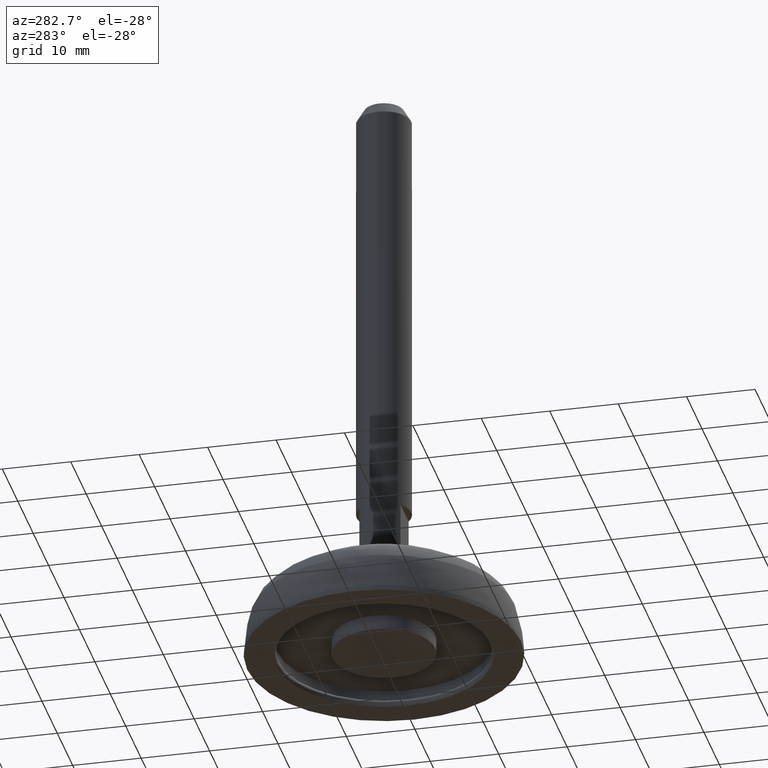
[diagram: clean part render]
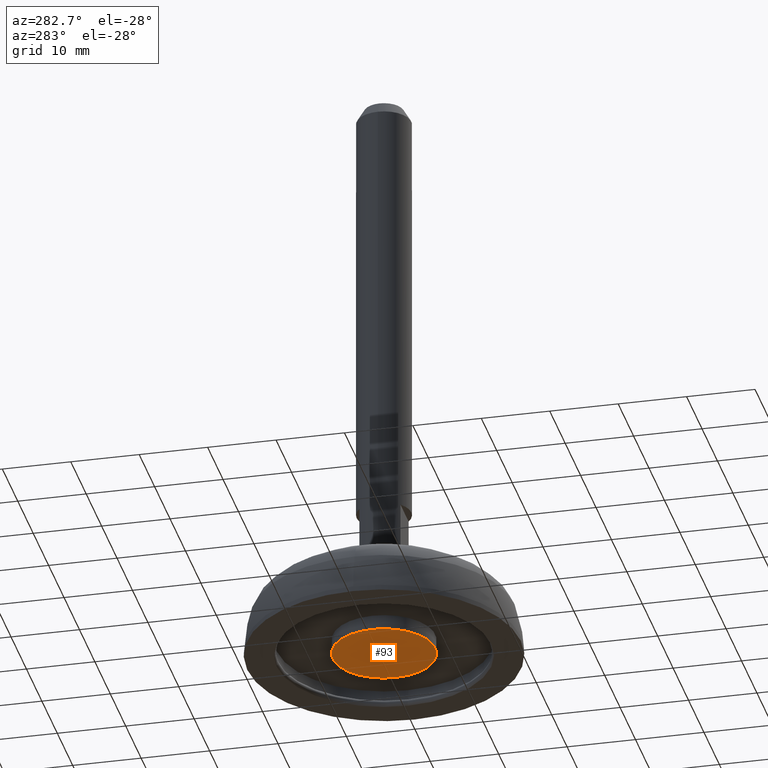
[diagram: same view with one face highlighted and labeled with its STEP entity id]
A machine part, auxiliary view. The second image highlights one B-rep face of the part: STEP entity #93.
In plain terms, the highlighted planar face has unit normal (0, 0, 1).
Its self-contained STEP definition (entity closure, byte-faithful):
#68=CARTESIAN_POINT('',(-8.245919653720410,-8.245919653720410,0.299999999999898));
#69=DIRECTION('',(0.0,0.0,1.0));
#70=DIRECTION('',(1.0,0.0,0.0));
#71=AXIS2_PLACEMENT_3D('',#68,#69,#70);
#72=PLANE('',#71);
#73=CARTESIAN_POINT('',(-7.496290594291281,5.857621E-016,0.299999999999841));
#74=VERTEX_POINT('',#73);
#75=CARTESIAN_POINT('',(7.496290594291281,5.857621E-016,0.299999999999841));
#76=VERTEX_POINT('',#75);
#77=CARTESIAN_POINT('',(0.0,5.857621E-016,0.299999999999841));
#78=DIRECTION('',(0.0,0.0,1.0));
#79=DIRECTION('',(1.0,0.0,0.0));
#80=AXIS2_PLACEMENT_3D('',#77,#78,#79);
#81=CIRCLE('',#80,7.496290594291281);
#82=EDGE_CURVE('',#74,#76,#81,.T.);
#83=ORIENTED_EDGE('',*,*,#82,.F.);
#84=CARTESIAN_POINT('',(0.0,5.857621E-016,0.299999999999841));
#85=DIRECTION('',(0.0,0.0,1.0));
#86=DIRECTION('',(1.0,0.0,0.0));
#87=AXIS2_PLACEMENT_3D('',#84,#85,#86);
#88=CIRCLE('',#87,7.496290594291281);
#89=EDGE_CURVE('',#76,#74,#88,.T.);
#90=ORIENTED_EDGE('',*,*,#89,.F.);
#91=EDGE_LOOP('',(#83,#90));
#92=FACE_OUTER_BOUND('',#91,.T.);
#93=ADVANCED_FACE('',(#92),#72,.F.);